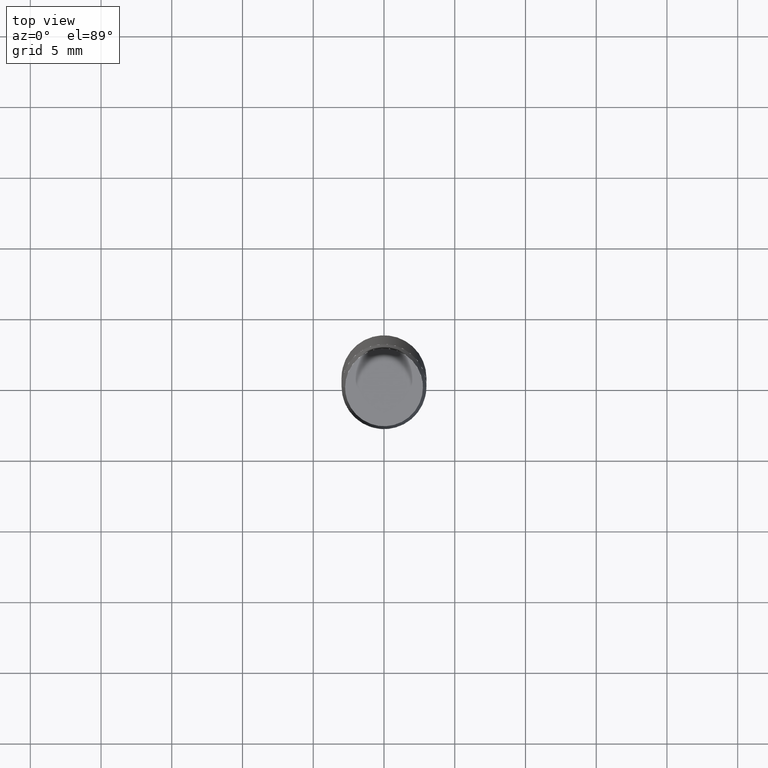
[diagram: clean part render]
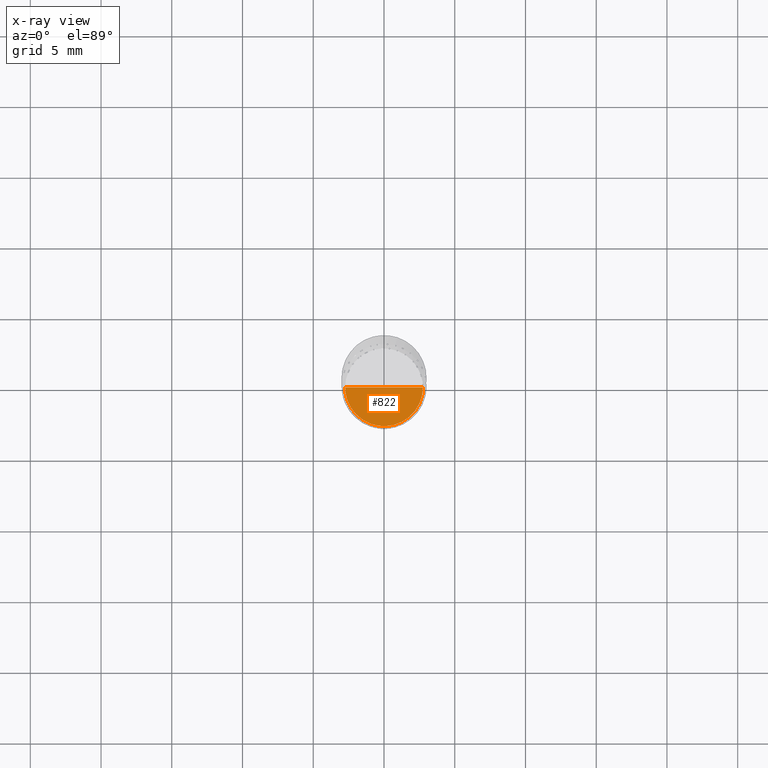
[diagram: x-ray — body ghosted, one internal face saturated and labeled with its STEP entity id]
A machine part, top view, then the same camera in x-ray: the body is ghosted and one INTERNAL B-rep face — a face not visible from any outside direction — is saturated and labeled: STEP entity #822.
In plain terms, the highlighted face is a freeform B-spline surface patch.
Its self-contained STEP definition (entity closure, byte-faithful):
#669=CARTESIAN_POINT('',(2.75,0.0,-3.0));
#673=CARTESIAN_POINT('',(-2.75,0.0,-3.0));
#674=CARTESIAN_POINT('',(0.0,0.0,-3.0));
#677=CARTESIAN_POINT('',(-2.75,-2.75,-3.0));
#678=CARTESIAN_POINT('',(0.0,-2.75,-3.0));
#679=CARTESIAN_POINT('',(2.75,-2.75,-3.0));
#807=(
BOUNDED_SURFACE()
B_SPLINE_SURFACE(1,2,(
(#673,#677,#678,#679,#669),
(#674,#674,#674,#674,#674)
), .UNSPECIFIED.,.F.,.F.,.F.)
B_SPLINE_SURFACE_WITH_KNOTS((2,2),(3,2,3),(
0.0,1.0),(
0.0,0.5,1.0), .UNSPECIFIED.)
GEOMETRIC_REPRESENTATION_ITEM()
RATIONAL_B_SPLINE_SURFACE(((1.0,0.707106781187,1.0,0.707106781187,1.0),
(1.0,0.707106781187,1.0,0.707106781187,1.0)
))
REPRESENTATION_ITEM('')
SURFACE()
);
#808=(
BOUNDED_CURVE()
B_SPLINE_CURVE(2,(#669,#679,#678,#677,#673),.UNSPECIFIED.,.F.,.F.)
B_SPLINE_CURVE_WITH_KNOTS((3,2,3),
(0.0,0.5,1.0),.UNSPECIFIED.)
CURVE()
GEOMETRIC_REPRESENTATION_ITEM()
RATIONAL_B_SPLINE_CURVE((1.0,0.707106781187,1.0,0.707106781187,1.0))
REPRESENTATION_ITEM('')
);
#809=(
BOUNDED_CURVE()
B_SPLINE_CURVE(1,(#673,#674),.UNSPECIFIED.,.F.,.F.)
B_SPLINE_CURVE_WITH_KNOTS((2,2),
(0.0,1.0),.UNSPECIFIED.)
CURVE()
GEOMETRIC_REPRESENTATION_ITEM()
RATIONAL_B_SPLINE_CURVE((1.0,1.0))
REPRESENTATION_ITEM('')
);
#810=(
BOUNDED_CURVE()
B_SPLINE_CURVE(1,(#674,#669),.UNSPECIFIED.,.F.,.F.)
B_SPLINE_CURVE_WITH_KNOTS((2,2),
(0.0,1.0),.UNSPECIFIED.)
CURVE()
GEOMETRIC_REPRESENTATION_ITEM()
RATIONAL_B_SPLINE_CURVE((1.0,1.0))
REPRESENTATION_ITEM('')
);
#811=VERTEX_POINT('',#669);
#812=VERTEX_POINT('',#673);
#813=VERTEX_POINT('',#674);
#814=EDGE_CURVE('',#811,#812,#808,.T.);
#815=EDGE_CURVE('',#812,#813,#809,.T.);
#816=EDGE_CURVE('',#813,#811,#810,.T.);
#817=ORIENTED_EDGE('',*,*,#814,.T.);
#818=ORIENTED_EDGE('',*,*,#815,.T.);
#819=ORIENTED_EDGE('',*,*,#816,.T.);
#820=EDGE_LOOP('',(#817,#818,#819));
#821=FACE_OUTER_BOUND('',#820,.T.);
#822=ADVANCED_FACE('',(#821),#807,.T.);